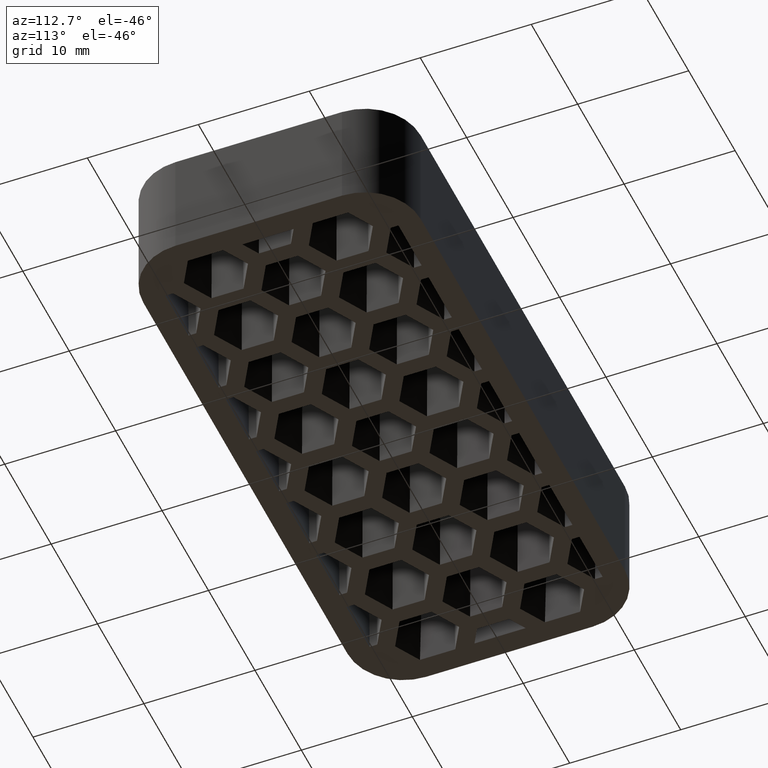
[diagram: clean part render]
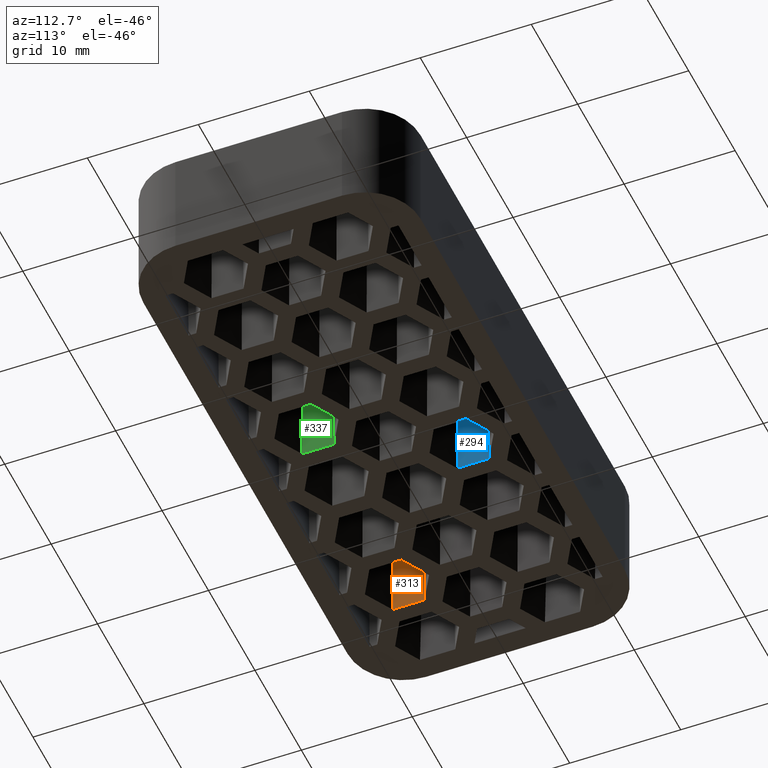
[diagram: same view with three faces highlighted in distinct colors, each labeled with its STEP entity id]
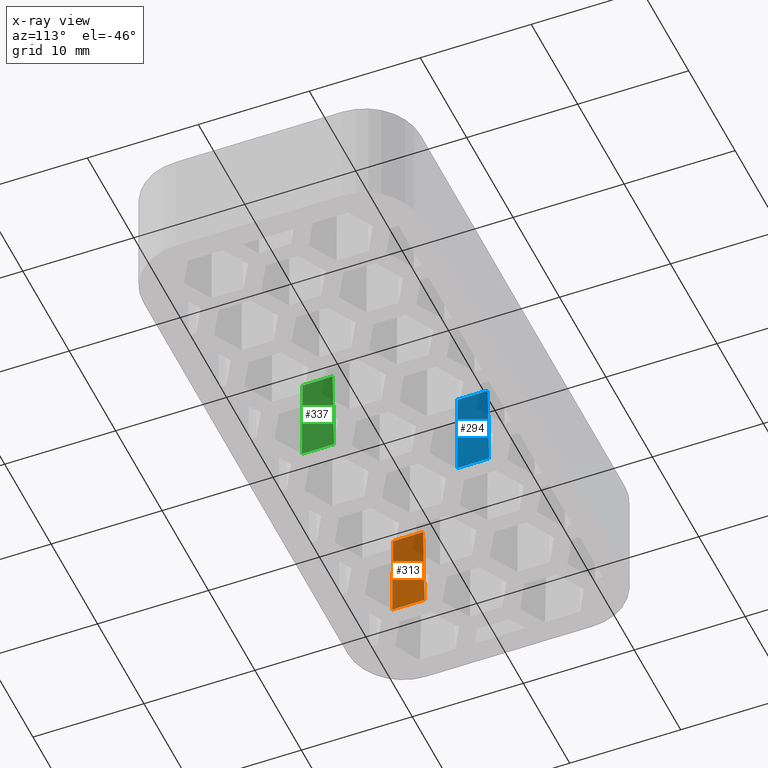
[diagram: x-ray of the same camera — body ghosted, the three highlighted faces saturated]
A machine part, auxiliary view with three faces highlighted in distinct colors.
The next image is the same camera in x-ray (body ghosted, the three faces saturated) — at least one of them is partly hidden behind the body in this view.
Their STEP definitions:

[orange] entity #313 — the highlighted planar face has unit normal (-0.9998, 0, 0.0175).
#313 = ADVANCED_FACE( '', ( #902 ), #903, .F. );
#902 = FACE_OUTER_BOUND( '', #1554, .T. );
#903 = PLANE( '', #1555 );
#1554 = EDGE_LOOP( '', ( #3660, #3661, #3662, #3663 ) );
#1555 = AXIS2_PLACEMENT_3D( '', #3664, #3665, #3666 );
#3660 = ORIENTED_EDGE( '', *, *, #4264, .T. );
#3661 = ORIENTED_EDGE( '', *, *, #4821, .F. );
#3662 = ORIENTED_EDGE( '', *, *, #4632, .F. );
#3663 = ORIENTED_EDGE( '', *, *, #4822, .T. );
#3664 = CARTESIAN_POINT( '', ( -18.7500000000000, -1.44337567297406, 8.83783510038344E-017 ) );
#3665 = DIRECTION( '', ( -0.999847695156391, 5.65713130046804E-017, 0.0174524064372835 ) );
#3666 = DIRECTION( '', ( -0.0174524064372835, -6.12209920171588E-017, -0.999847695156391 ) );
#4264 = EDGE_CURVE( '', #5175, #5173, #5176, .T. );
#4632 = EDGE_CURVE( '', #5809, #5811, #5812, .T. );
#4821 = EDGE_CURVE( '', #5811, #5173, #6089, .T. );
#4822 = EDGE_CURVE( '', #5809, #5175, #6090, .T. );
#5173 = VERTEX_POINT( '', #6585 );
#5175 = VERTEX_POINT( '', #6588 );
#5176 = LINE( '', #6589, #6590 );
#5809 = VERTEX_POINT( '', #7585 );
#5811 = VERTEX_POINT( '', #7588 );
#5812 = LINE( '', #7589, #7590 );
#6089 = LINE( '', #8054, #8055 );
#6090 = LINE( '', #8056, #8057 );
#6585 = CARTESIAN_POINT( '', ( -18.7500000000000, -4.18578945162479, 2.56297217911120E-016 ) );
#6588 = CARTESIAN_POINT( '', ( -18.7500000000000, -7.07254079757292, 4.33053919918789E-016 ) );
#6589 = CARTESIAN_POINT( '', ( -18.7500000000000, -1.44337567297406, 8.83783510038344E-017 ) );
#6590 = VECTOR( '', #8326, 1000.00000000000 );
#7585 = CARTESIAN_POINT( '', ( -18.6103594805743, -6.99191930609269, 8.00000000000000 ) );
#7588 = CARTESIAN_POINT( '', ( -18.6103594805743, -4.26641094310502, 8.00000000000000 ) );
#7589 = CARTESIAN_POINT( '', ( -18.6103594805743, -1.44337567297406, 8.00000000000000 ) );
#7590 = VECTOR( '', #8702, 1000.00000000000 );
#8054 = CARTESIAN_POINT( '', ( -18.7504822129847, -4.18551104582827, -0.0276259633910645 ) );
#8055 = VECTOR( '', #8893, 1000.00000000000 );
#8056 = CARTESIAN_POINT( '', ( -18.7472589998765, -7.07095828041374, 0.157031791907126 ) );
#8057 = VECTOR( '', #8894, 1000.00000000000 );
#8326 = DIRECTION( '', ( 5.55111512312578E-017, 1.00000000000000, -6.12303176911189E-017 ) );
#8702 = DIRECTION( '', ( 5.55111512312578E-017, 1.00000000000000, -6.12303176911189E-017 ) );
#8893 = DIRECTION( '', ( -0.0174515205435363, 0.0100756400835789, -0.999796942337605 ) );
#8894 = DIRECTION( '', ( -0.0174515205435363, -0.0100756400835790, -0.999796942337605 ) );

[blue] entity #294 — the highlighted planar face has unit normal (-0.9998, -0, 0.0175).
#294 = ADVANCED_FACE( '', ( #864 ), #865, .F. );
#864 = FACE_OUTER_BOUND( '', #1516, .T. );
#865 = PLANE( '', #1517 );
#1516 = EDGE_LOOP( '', ( #3527, #3528, #3529, #3530 ) );
#1517 = AXIS2_PLACEMENT_3D( '', #3531, #3532, #3533 );
#3527 = ORIENTED_EDGE( '', *, *, #4367, .F. );
#3528 = ORIENTED_EDGE( '', *, *, #4811, .F. );
#3529 = ORIENTED_EDGE( '', *, *, #4585, .T. );
#3530 = ORIENTED_EDGE( '', *, *, #4810, .T. );
#3531 = CARTESIAN_POINT( '', ( -5.75000000000000, -1.44337567297407, 8.83783510038346E-017 ) );
#3532 = DIRECTION( '', ( -0.999847695156391, -3.31947563293677E-016, 0.0174524064372835 ) );
#3533 = DIRECTION( '', ( -0.0174524064372835, -6.12209920171588E-017, -0.999847695156391 ) );
#4367 = EDGE_CURVE( '', #5377, #5379, #5380, .F. );
#4585 = EDGE_CURVE( '', #5734, #5732, #5735, .F. );
#4810 = EDGE_CURVE( '', #5732, #5379, #6078, .T. );
#4811 = EDGE_CURVE( '', #5734, #5377, #6079, .T. );
#5377 = VERTEX_POINT( '', #6891 );
#5379 = VERTEX_POINT( '', #6894 );
#5380 = LINE( '', #6895, #6896 );
#5732 = VERTEX_POINT( '', #7461 );
#5734 = VERTEX_POINT( '', #7464 );
#5735 = LINE( '', #7465, #7466 );
#6078 = LINE( '', #8032, #8033 );
#6079 = LINE( '', #8034, #8035 );
#6891 = CARTESIAN_POINT( '', ( -5.75000000000001, 7.07254079757291, -4.33053919918789E-016 ) );
#6894 = CARTESIAN_POINT( '', ( -5.75000000000001, 4.18578945162478, -2.56297217911120E-016 ) );
#6895 = CARTESIAN_POINT( '', ( -5.75000000000000, 1.29903810567665, -7.95405159034508E-017 ) );
#6896 = VECTOR( '', #8431, 1000.00000000000 );
#7461 = CARTESIAN_POINT( '', ( -5.61035948057426, 4.26641094310502, 8.00000000000000 ) );
#7464 = CARTESIAN_POINT( '', ( -5.61035948057427, 6.99191930609268, 8.00000000000000 ) );
#7465 = CARTESIAN_POINT( '', ( -5.61035948057426, 1.29903810567666, 8.00000000000000 ) );
#7466 = VECTOR( '', #8655, 1000.00000000000 );
#8032 = CARTESIAN_POINT( '', ( -5.74824880547664, 4.18680050425425, 0.100325867051776 ) );
#8033 = VECTOR( '', #8882, 1000.00000000000 );
#8034 = CARTESIAN_POINT( '', ( -5.74850260178437, 7.07167627431004, 0.0857858863196333 ) );
#8035 = VECTOR( '', #8883, 1000.00000000000 );
#8431 = DIRECTION( '', ( -3.33066907387547E-016, 1.00000000000000, -6.12303176911189E-017 ) );
#8655 = DIRECTION( '', ( -3.33066907387547E-016, 1.00000000000000, -6.12303176911189E-017 ) );
#8882 = DIRECTION( '', ( -0.0174515205435363, -0.0100756400835790, -0.999796942337605 ) );
#8883 = DIRECTION( '', ( -0.0174515205435363, 0.0100756400835789, -0.999796942337605 ) );

[green] entity #337 — the highlighted planar face has unit normal (-0.9998, 0, 0.0175).
#337 = ADVANCED_FACE( '', ( #950 ), #951, .F. );
#950 = FACE_OUTER_BOUND( '', #1602, .T. );
#951 = PLANE( '', #1603 );
#1602 = EDGE_LOOP( '', ( #3828, #3829, #3830, #3831 ) );
#1603 = AXIS2_PLACEMENT_3D( '', #3832, #3833, #3834 );
#3828 = ORIENTED_EDGE( '', *, *, #4300, .T. );
#3829 = ORIENTED_EDGE( '', *, *, #4838, .F. );
#3830 = ORIENTED_EDGE( '', *, *, #4688, .F. );
#3831 = ORIENTED_EDGE( '', *, *, #4839, .T. );
#3832 = CARTESIAN_POINT( '', ( 0.749999999999996, -1.44337567297406, 8.83783510038344E-017 ) );
#3833 = DIRECTION( '', ( -0.999847695156391, 5.65713130046804E-017, 0.0174524064372835 ) );
#3834 = DIRECTION( '', ( -0.0174524064372835, -6.12209920171588E-017, -0.999847695156391 ) );
#4300 = EDGE_CURVE( '', #5247, #5245, #5248, .T. );
#4688 = EDGE_CURVE( '', #5901, #5903, #5904, .T. );
#4838 = EDGE_CURVE( '', #5903, #5245, #6106, .T. );
#4839 = EDGE_CURVE( '', #5901, #5247, #6107, .T. );
#5245 = VERTEX_POINT( '', #6693 );
#5247 = VERTEX_POINT( '', #6696 );
#5248 = LINE( '', #6697, #6698 );
#5901 = VERTEX_POINT( '', #7733 );
#5903 = VERTEX_POINT( '', #7736 );
#5904 = LINE( '', #7737, #7738 );
#6106 = LINE( '', #8088, #8089 );
#6107 = LINE( '', #8090, #8091 );
#6693 = CARTESIAN_POINT( '', ( 0.749999999999996, -4.18578945162479, 2.56297217911120E-016 ) );
#6696 = CARTESIAN_POINT( '', ( 0.749999999999996, -7.07254079757292, 4.33053919918789E-016 ) );
#6697 = CARTESIAN_POINT( '', ( 0.749999999999996, -1.44337567297406, 8.83783510038344E-017 ) );
#6698 = VECTOR( '', #8362, 1000.00000000000 );
#7733 = CARTESIAN_POINT( '', ( 0.889640519425737, -6.99191930609268, 8.00000000000000 ) );
#7736 = CARTESIAN_POINT( '', ( 0.889640519425737, -4.26641094310502, 8.00000000000000 ) );
#7737 = CARTESIAN_POINT( '', ( 0.889640519425737, -1.44337567297406, 8.00000000000000 ) );
#7738 = VECTOR( '', #8758, 1000.00000000000 );
#8088 = CARTESIAN_POINT( '', ( 0.749517787015300, -4.18551104582826, -0.0276259633910645 ) );
#8089 = VECTOR( '', #8910, 1000.00000000000 );
#8090 = CARTESIAN_POINT( '', ( 0.749771583323035, -7.07267267400285, -0.0130859826589220 ) );
#8091 = VECTOR( '', #8911, 1000.00000000000 );
#8362 = DIRECTION( '', ( 5.55111512312578E-017, 1.00000000000000, -6.12303176911189E-017 ) );
#8758 = DIRECTION( '', ( 5.55111512312578E-017, 1.00000000000000, -6.12303176911189E-017 ) );
#8910 = DIRECTION( '', ( -0.0174515205435363, 0.0100756400835789, -0.999796942337605 ) );
#8911 = DIRECTION( '', ( -0.0174515205435363, -0.0100756400835790, -0.999796942337605 ) );